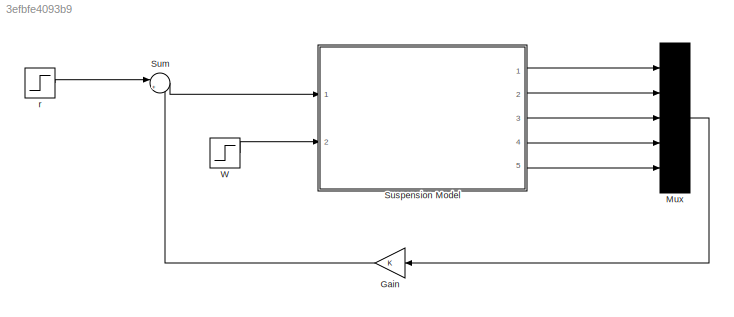
MODEL slx_3efbfe4093b9
KIND model
CONFIG AbsTol = auto
CONFIG EnableMultiTasking = off
CONFIG FixedStep = auto
CONFIG MaxStep = auto
CONFIG MinStep = auto
CONFIG RelTol = 1e-3
CONFIG SampleTimeConstraint = Unconstrained
CONFIG SolverName = ode45
CONFIG StartTime = 0.0
CONFIG StopTime = 2.0
BLOCK [Gain] Gain
  Gain = K
  Multiplication = Matrix(K*u)
  NameLocation = top
BLOCK [Mux] Mux
  DisplayOption = bar
  Inputs = 5
  Ports = [5, 1]
BLOCK [Sum] Sum
  Inputs = |+-
  Ports = [2, 1]
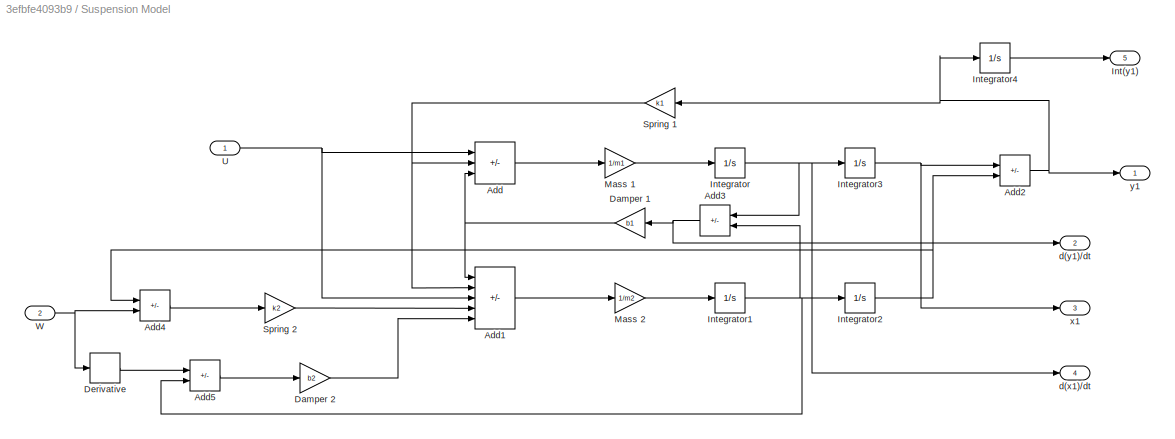
BLOCK [SubSystem] Suspension Model
  Ports = [2, 5]
  RequestExecContextInheritance = off
BLOCK [Sum] Suspension Model/Add
  IconShape = rectangular
  Inputs = +--
  Ports = [3, 1]
BLOCK [Sum] Suspension Model/Add1
  IconShape = rectangular
  Inputs = ++-++
  Ports = [5, 1]
BLOCK [Sum] Suspension Model/Add2
  IconShape = rectangular
  Inputs = +-
  Ports = [2, 1]
BLOCK [Sum] Suspension Model/Add3
  IconShape = rectangular
  Inputs = +-
  NameLocation = top
  Ports = [2, 1]
BLOCK [Sum] Suspension Model/Add4
  IconShape = rectangular
  Inputs = -+
  Ports = [2, 1]
BLOCK [Sum] Suspension Model/Add5
  IconShape = rectangular
  Inputs = +-
  Ports = [2, 1]
BLOCK [Gain] Suspension Model/Damper 1
  Gain = b1
  NameLocation = top
BLOCK [Gain] Suspension Model/Damper 2
  Gain = b2
BLOCK [Derivative] Suspension Model/Derivative
BLOCK [Outport] Suspension Model/Int(y1)
  Port = 5
BLOCK [Integrator] Suspension Model/Integrator
  Ports = [1, 1]
BLOCK [Integrator] Suspension Model/Integrator1
  Ports = [1, 1]
BLOCK [Integrator] Suspension Model/Integrator2
  Ports = [1, 1]
BLOCK [Integrator] Suspension Model/Integrator3
  Ports = [1, 1]
BLOCK [Integrator] Suspension Model/Integrator4
  Ports = [1, 1]
BLOCK [Gain] Suspension Model/Mass 1
  Gain = 1/m1
BLOCK [Gain] Suspension Model/Mass 2
  Gain = 1/m2
BLOCK [Gain] Suspension Model/Spring 1
  Gain = k1
  NameLocation = top
BLOCK [Gain] Suspension Model/Spring 2
  Gain = k2
BLOCK [Inport] Suspension Model/U
BLOCK [Inport] Suspension Model/W
  Port = 2
BLOCK [Outport] Suspension Model/d(x1)//dt
  Port = 4
BLOCK [Outport] Suspension Model/d(y1)//dt
  Port = 2
BLOCK [Outport] Suspension Model/x1
  Port = 3
BLOCK [Outport] Suspension Model/y1
BLOCK [Step] W
  After = -1
  SampleTime = 0
  Time = 0
BLOCK [Step] r
  After = 0
  SampleTime = 0
  Time = 0
LINE Gain:1 -> Sum:2
LINE Mux:1 -> Gain:1
LINE Sum:1 -> Suspension Model:1
LINE Suspension Model/Add1:1 -> Suspension Model/Mass 2:1
NET Suspension Model/Add2:1 -> Suspension Model/Integrator4:1, Suspension Model/Spring 1:1, Suspension Model/y1:1
NET Suspension Model/Add3:1 -> Suspension Model/Damper 1:1, Suspension Model/d(y1)//dt:1
LINE Suspension Model/Add4:1 -> Suspension Model/Spring 2:1
LINE Suspension Model/Add5:1 -> Suspension Model/Damper 2:1
LINE Suspension Model/Add:1 -> Suspension Model/Mass 1:1
NET Suspension Model/Damper 1:1 -> Suspension Model/Add1:1, Suspension Model/Add:3
LINE Suspension Model/Damper 2:1 -> Suspension Model/Add1:5
LINE Suspension Model/Derivative:1 -> Suspension Model/Add5:1
NET Suspension Model/Integrator1:1 -> Suspension Model/Add3:2, Suspension Model/Add5:2, Suspension Model/Integrator2:1
NET Suspension Model/Integrator2:1 -> Suspension Model/Add2:2, Suspension Model/Add4:1
NET Suspension Model/Integrator3:1 -> Suspension Model/Add2:1, Suspension Model/x1:1
LINE Suspension Model/Integrator4:1 -> Suspension Model/Int(y1):1
NET Suspension Model/Integrator:1 -> Suspension Model/Add3:1, Suspension Model/Integrator3:1, Suspension Model/d(x1)//dt:1
LINE Suspension Model/Mass 1:1 -> Suspension Model/Integrator:1
LINE Suspension Model/Mass 2:1 -> Suspension Model/Integrator1:1
NET Suspension Model/Spring 1:1 -> Suspension Model/Add1:2, Suspension Model/Add:2
LINE Suspension Model/Spring 2:1 -> Suspension Model/Add1:4
NET Suspension Model/U:1 -> Suspension Model/Add1:3, Suspension Model/Add:1
NET Suspension Model/W:1 -> Suspension Model/Add4:2, Suspension Model/Derivative:1
LINE Suspension Model:1 -> Mux:1
LINE Suspension Model:2 -> Mux:2
LINE Suspension Model:3 -> Mux:3
LINE Suspension Model:4 -> Mux:4
LINE Suspension Model:5 -> Mux:5
LINE W:1 -> Suspension Model:2
LINE r:1 -> Sum:1
note: NET lines group one-source signal fan-out (src -> all destinations, sorted); 1:1 wires keep LINE
